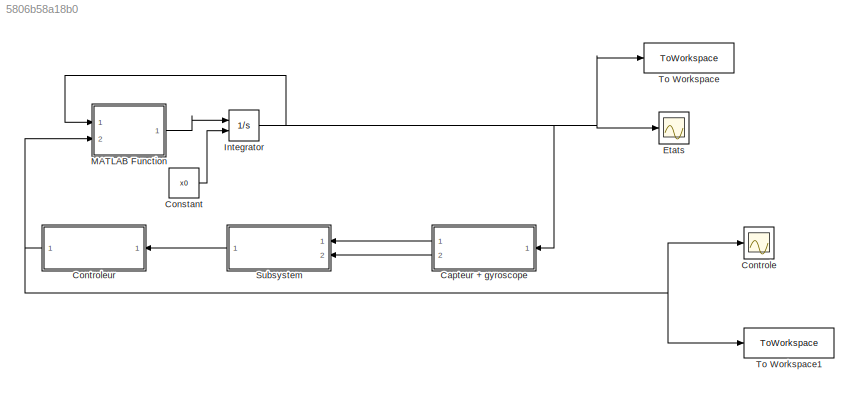
MODEL slx_5806b58a18b0
KIND model
CONFIG AbsTol = auto
CONFIG EnableMultiTasking = off
CONFIG FixedStep = auto
CONFIG MaxStep = auto
CONFIG MinStep = auto
CONFIG RelTol = 1e-3
CONFIG SampleTimeConstraint = Unconstrained
CONFIG SolverName = VariableStepAuto
CONFIG StartTime = 0.0
CONFIG StopTime = 10.0
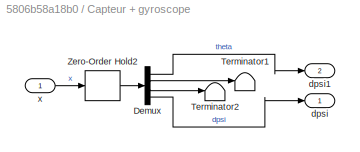
BLOCK [SubSystem] Capteur + gyroscope
  Ports = [1, 2]
  RequestExecContextInheritance = off
BLOCK [Demux] Capteur + gyroscope/Demux
  Ports = [1, 4]
BLOCK [Terminator] Capteur + gyroscope/Terminator1
BLOCK [Terminator] Capteur + gyroscope/Terminator2
BLOCK [ZeroOrderHold] Capteur + gyroscope/Zero-Order Hold2
  SampleTime = delta_t
BLOCK [Outport] Capteur + gyroscope/dpsi
  IconDisplay = Signal name
BLOCK [Outport] Capteur + gyroscope/dpsi1
  IconDisplay = Signal name
  Port = 2
BLOCK [Inport] Capteur + gyroscope/x
  IconDisplay = Signal name
BLOCK [Constant] Constant
  Value = x0
BLOCK [Scope] Controle
  Floating = off
  NumInputPorts = 1
  Ports = [1]
  ScopeSpecificationString = Simulink.scopes.TimeScopeBlockCfg('CurrentConfiguration', extmgr.ConfigurationSet(extmgr.Configuration('Core','General UI',true),extmgr.Configuration('Core','Source UI',true),extmgr.Configuration('Sources','WiredSimulink',true,'DataLoggingVariableName','ScopeData1'),extmgr.Configuration('Visuals','Time Domain',true),extmgr.Configuration('Tools','Plot Navigation',true),extmgr.Configuration('Tools',...<+65ch>
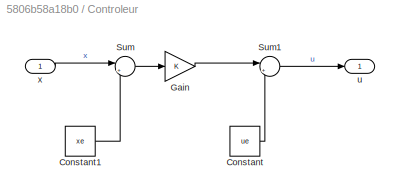
BLOCK [SubSystem] Controleur
  Ports = [1, 1]
  RequestExecContextInheritance = off
BLOCK [Constant] Controleur/Constant
  Value = ue
BLOCK [Constant] Controleur/Constant1
  Value = xe
BLOCK [Gain] Controleur/Gain
  Gain = K
  Multiplication = Matrix(K*u)
BLOCK [Sum] Controleur/Sum
  Inputs = |+-
  Ports = [2, 1]
BLOCK [Sum] Controleur/Sum1
  Inputs = |++
  Ports = [2, 1]
BLOCK [Outport] Controleur/u
  IconDisplay = Signal name
BLOCK [Inport] Controleur/x
  IconDisplay = Signal name
BLOCK [Scope] Etats
  Floating = off
  NumInputPorts = 1
  Ports = [1]
  ScopeSpecificationString = Simulink.scopes.TimeScopeBlockCfg('CurrentConfiguration', extmgr.ConfigurationSet(extmgr.Configuration('Core','General UI',true),extmgr.Configuration('Core','Source UI',true),extmgr.Configuration('Sources','WiredSimulink',true),extmgr.Configuration('Visuals','Time Domain',true,'SerializedDisplays',{struct('MinYLimReal','-0.3507','MaxYLimReal','0.38803','YLabelReal','','MinYLimMag','0.00000','MaxYL...<+1368ch>
BLOCK [Integrator] Integrator
  InitialConditionSource = external
  Ports = [2, 1]
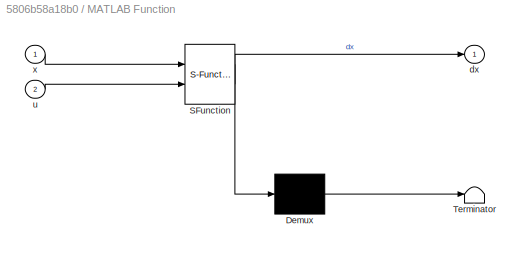
BLOCK [SubSystem] MATLAB Function
  ErrorFcn = Stateflow.Translate.translate
  PermitHierarchicalResolution = ExplicitOnly
  Ports = [2, 1]
  RequestExecContextInheritance = off
  SFBlockType = MATLAB Function
  TreatAsAtomicUnit = on
BLOCK [Demux] MATLAB Function/ Demux 
  Outputs = 1
  Ports = [1, 1]
BLOCK [S-Function] MATLAB Function/ SFunction 
  EnableBusSupport = on
  FunctionName = sf_sfun
  PortCounts = [2 2]
  Ports = [2, 2]
  SFcnIsStateOwnerBlock = off
  SFunctionDeploymentMode = off
  Tag = Stateflow S-Function 2
BLOCK [Terminator] MATLAB Function/ Terminator 
BLOCK [Outport] MATLAB Function/dx
BLOCK [Inport] MATLAB Function/u
  Port = 2
BLOCK [Inport] MATLAB Function/x
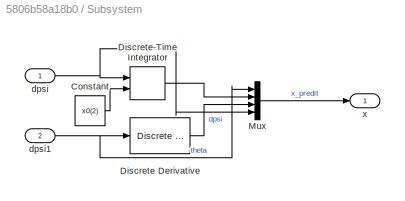
BLOCK [SubSystem] Subsystem
  Ports = [2, 1]
  RequestExecContextInheritance = off
BLOCK [Constant] Subsystem/Constant
  Value = x0(2)
BLOCK [Reference] Subsystem/Discrete Derivative  REF=simulink/Discrete/Discrete Derivative
  Ports = [1, 1]
  SourceBlock = simulink/Discrete/Discrete Derivative
  SourceProductBaseCode = SL
  SourceType = Discrete Derivative
BLOCK [DiscreteIntegrator] Subsystem/Discrete-Time Integrator
  ICPrevOutput = DiscIntNeverNeededParam
  ICPrevScaledInput = DiscIntNeverNeededParam
  InitialConditionSetting = Auto
  InitialConditionSource = external
  Ports = [2, 1]
  SampleTime = -1
BLOCK [Mux] Subsystem/Mux
  DisplayOption = bar
  Ports = [4, 1]
BLOCK [Inport] Subsystem/dpsi
  IconDisplay = Signal name
BLOCK [Inport] Subsystem/dpsi1
  IconDisplay = Signal name
  Port = 2
BLOCK [Outport] Subsystem/x
  IconDisplay = Signal name
BLOCK [ToWorkspace] To Workspace
  FixptAsFi = on
  MaxDataPoints = inf
  Ports = [1]
  SampleTime = -1
  SaveFormat = Timeseries
  VariableName = X
BLOCK [ToWorkspace] To Workspace1
  FixptAsFi = on
  MaxDataPoints = inf
  Ports = [1]
  SampleTime = -1
  SaveFormat = Timeseries
  VariableName = U
LINE Capteur + gyroscope/Demux:1 -> Capteur + gyroscope/dpsi1:1
LINE Capteur + gyroscope/Demux:2 -> Capteur + gyroscope/Terminator1:1
LINE Capteur + gyroscope/Demux:3 -> Capteur + gyroscope/Terminator2:1
LINE Capteur + gyroscope/Demux:4 -> Capteur + gyroscope/dpsi:1
LINE Capteur + gyroscope/Zero-Order Hold2:1 -> Capteur + gyroscope/Demux:1
LINE Capteur + gyroscope/x:1 -> Capteur + gyroscope/Zero-Order Hold2:1
LINE Capteur + gyroscope:1 -> Subsystem:1
LINE Capteur + gyroscope:2 -> Subsystem:2
LINE Constant:1 -> Integrator:2
LINE Controleur/Constant1:1 -> Controleur/Sum:2
LINE Controleur/Constant:1 -> Controleur/Sum1:2
LINE Controleur/Gain:1 -> Controleur/Sum1:1
LINE Controleur/Sum1:1 -> Controleur/u:1
LINE Controleur/Sum:1 -> Controleur/Gain:1
LINE Controleur/x:1 -> Controleur/Sum:1
NET Controleur:1 -> Controle:1, MATLAB Function:2, To Workspace1:1
NET Integrator:1 -> Capteur + gyroscope:1, Etats:1, MATLAB Function:1, To Workspace:1
LINE MATLAB Function:1 -> Integrator:1
LINE Subsystem/Constant:1 -> Subsystem/Discrete-Time Integrator:2
LINE Subsystem/Discrete Derivative:1 -> Subsystem/Mux:3
LINE Subsystem/Discrete-Time Integrator:1 -> Subsystem/Mux:2
LINE Subsystem/Mux:1 -> Subsystem/x:1
NET Subsystem/dpsi1:1 -> Subsystem/Discrete Derivative:1, Subsystem/Mux:1
NET Subsystem/dpsi:1 -> Subsystem/Discrete-Time Integrator:1, Subsystem/Mux:4
LINE Subsystem:1 -> Controleur:1
note: NET lines group one-source signal fan-out (src -> all destinations, sorted); 1:1 wires keep LINE
CHART MATLAB Function states=1 transitions=1
  STATE_LABEL 'eML_blk_kernel()'
  STATE_LABEL 'SCRIPT:\nfunction dx   = fonction( x, u)\n%   Dynamic equations of motion of the segway on an axis.\n%   Inputs: - x = [theta psi dtheta dpsi]\n%               theta: average angle of the wheels      [rad]\n%               psi: body pitch angle                   [rad]\n%               dtheta: average velocity of the wheels  [rad/s]\n%               dpsi: body pitch velocity               [rad/s]\n%       ...<+1496ch>'
CHART  states=0 transitions=0
